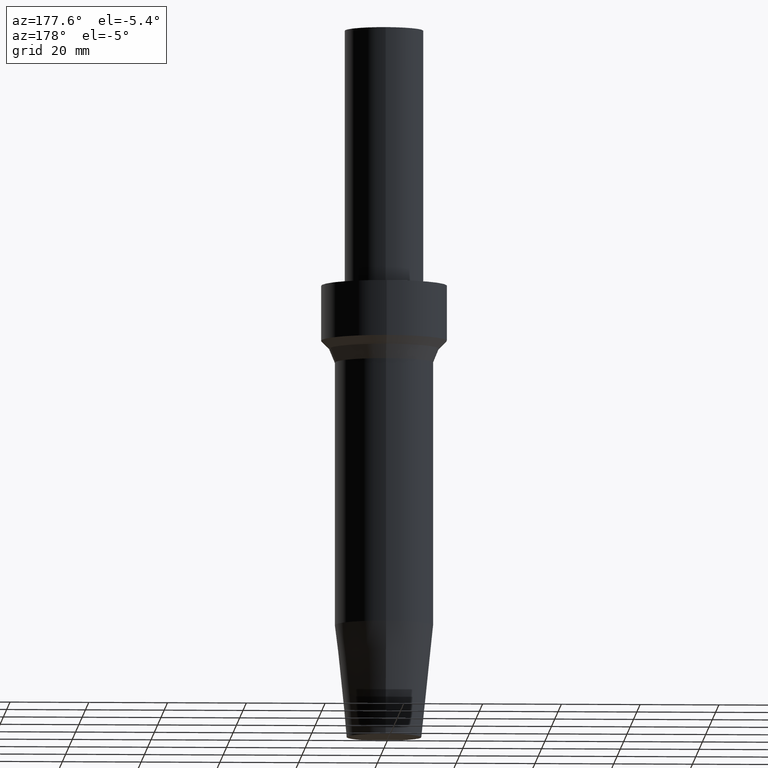
[diagram: clean part render]
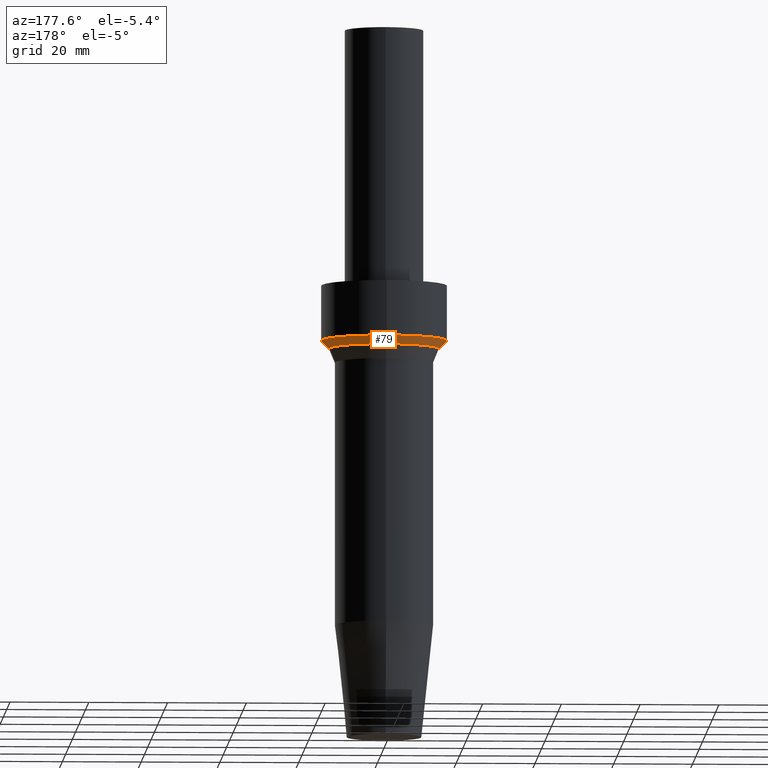
[diagram: same view with one face highlighted and labeled with its STEP entity id]
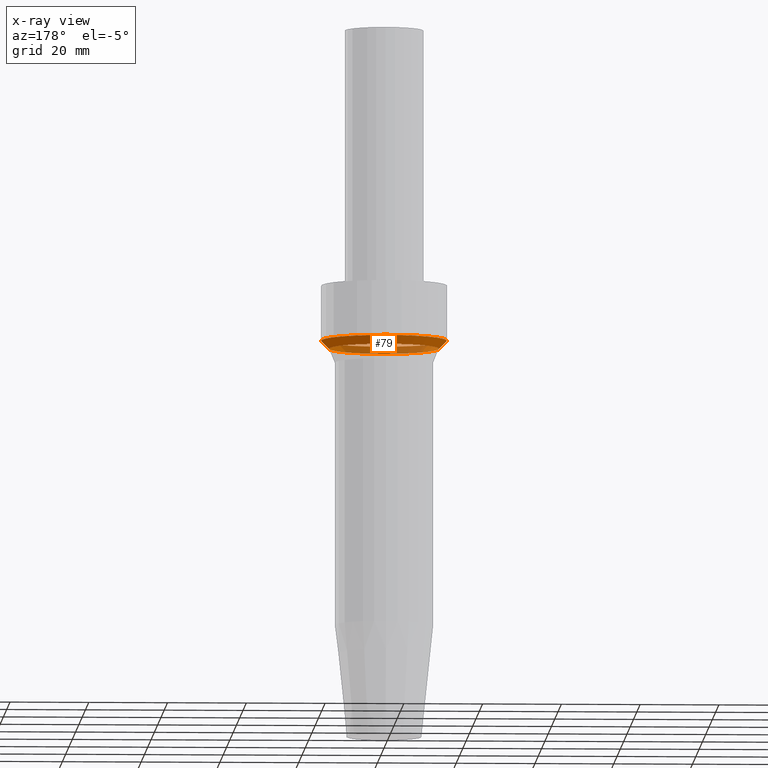
[diagram: x-ray of the same camera — body ghosted, the highlighted face saturated]
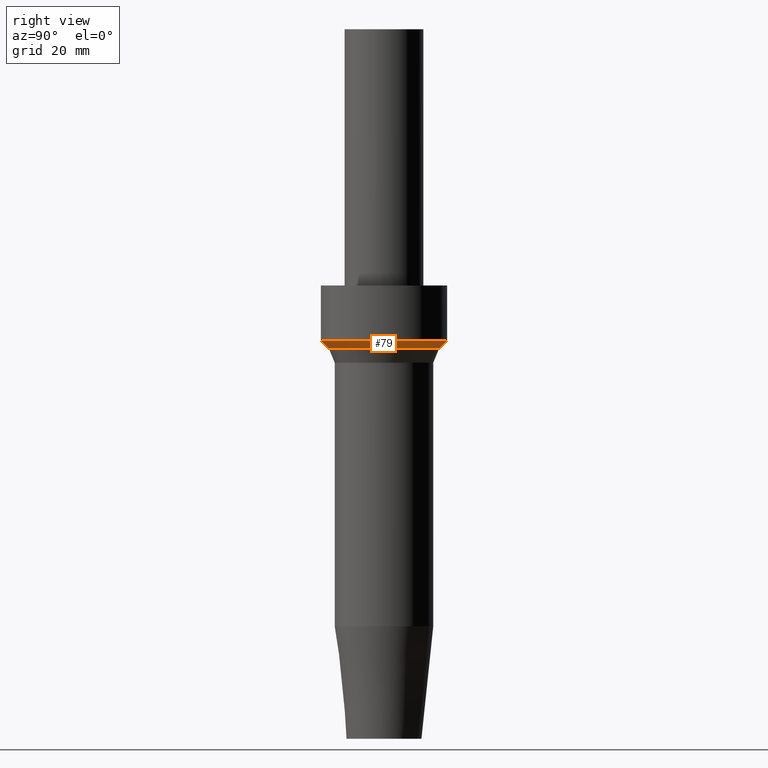
[diagram: same view with one face highlighted and labeled with its STEP entity id]
A machine part, auxiliary view. The second image highlights one B-rep face of the part: STEP entity #79.
The next image is the same camera in x-ray: the body ghosted, the highlighted face saturated — about 32% of this face is hidden behind the body in this view.
A second angle (right view) of the same face is appended — the face is thin or edge-on in the first view.
In plain terms, the highlighted conical surface has half-angle 45 deg.
Its self-contained STEP definition (entity closure, byte-faithful):
#79=ADVANCED_FACE('',(#96,#97),#98,.T.);
#96=FACE_BOUND('',#121,.T.);
#97=FACE_BOUND('',#122,.T.);
#98=CONICAL_SURFACE('',#123,14.9822330470336,0.785398163397405);
#121=EDGE_LOOP('',(#154));
#122=EDGE_LOOP('',(#155));
#123=AXIS2_PLACEMENT_3D('',#156,#157,#158);
#154=ORIENTED_EDGE('',*,*,#182,.F.);
#155=ORIENTED_EDGE('',*,*,#181,.T.);
#156=CARTESIAN_POINT('',(-6.12214608363319E-015,1.1158142600887E-014,99.9822330470412));
#157=DIRECTION('',(-6.12323399573677E-017,1.11601254151197E-016,1.0));
#158=DIRECTION('',(2.00645320308564E-033,1.0,-1.11601254151197E-016));
#181=EDGE_CURVE('',#192,#192,#193,.T.);
#182=EDGE_CURVE('',#194,#194,#195,.T.);
#192=VERTEX_POINT('',#208);
#193=CIRCLE('',#209,16.0000000000001);
#194=VERTEX_POINT('',#210);
#195=CIRCLE('',#211,13.9644660940671);
#208=CARTESIAN_POINT('',(-6.18446633569461E-015,16.0000000000001,101.000000000008));
#209=AXIS2_PLACEMENT_3D('',#227,#228,#229);
#210=CARTESIAN_POINT('',(-6.05982583157176E-015,13.9644660940671,98.9644660940746));
#211=AXIS2_PLACEMENT_3D('',#230,#231,#232);
#227=CARTESIAN_POINT('',(-6.18446633569461E-015,1.12717266692717E-014,101.000000000008));
#228=DIRECTION('',(6.12323399573676E-017,-1.11601254151197E-016,-1.0));
#229=DIRECTION('',(2.00645320308564E-033,1.0,-1.11601254151197E-016));
#230=CARTESIAN_POINT('',(-6.05982583157176E-015,1.10445585325022E-014,98.9644660940746));
#231=DIRECTION('',(6.12323399573677E-017,-1.11601254151197E-016,-1.0));
#232=DIRECTION('',(2.00645320308564E-033,1.0,-1.11601254151197E-016));